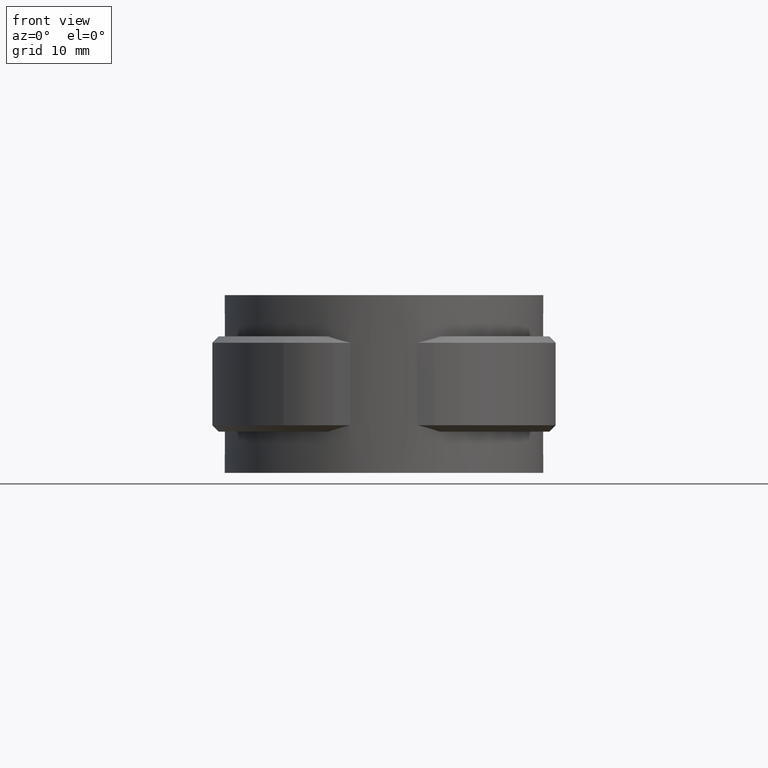
[diagram: clean part render]
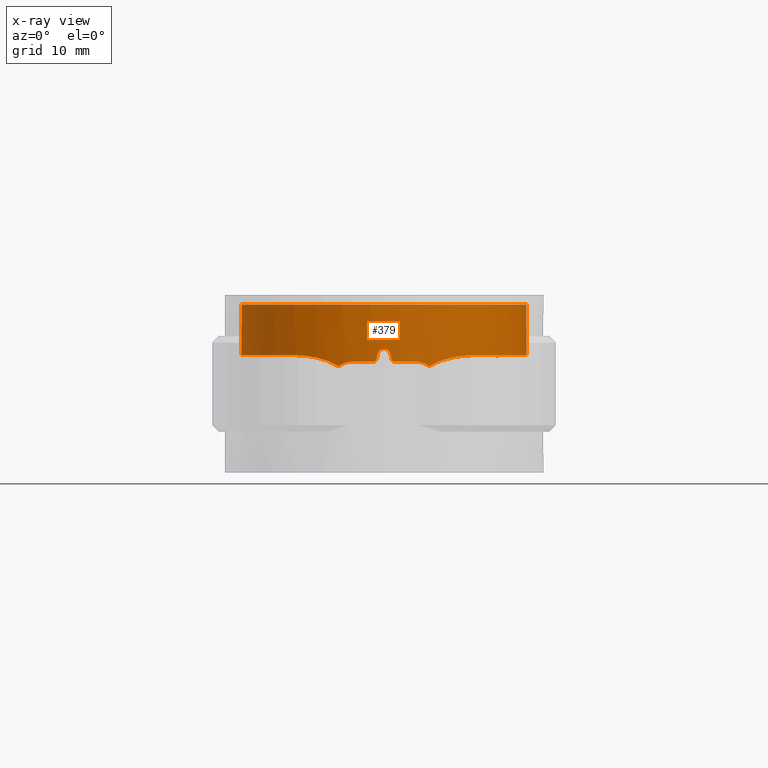
[diagram: x-ray — body ghosted, one internal face saturated and labeled with its STEP entity id]
A machine part, front view, then the same camera in x-ray: the body is ghosted and one INTERNAL B-rep face — a face not visible from any outside direction — is saturated and labeled: STEP entity #379.
In plain terms, the highlighted cylindrical surface (partial cylindrical patch) has radius 22.5 mm, axis along (0, 0, -1).
Its self-contained STEP definition (entity closure, byte-faithful):
#379 = ADVANCED_FACE( '', ( #742 ), #743, .F. );
#742 = FACE_OUTER_BOUND( '', #1626, .T. );
#743 = CYLINDRICAL_SURFACE( '', #1627, 22.5000000000000 );
#1626 = EDGE_LOOP( '', ( #2995, #2996, #2997, #2998, #2999, #3000, #3001, #3002, #3003, #3004, #3005, #3006, #3007, #3008, #3009, #3010 ) );
#1627 = AXIS2_PLACEMENT_3D( '', #3011, #3012, #3013 );
#2995 = ORIENTED_EDGE( '', *, *, #6675, .T. );
#2996 = ORIENTED_EDGE( '', *, *, #6684, .T. );
#2997 = ORIENTED_EDGE( '', *, *, #6682, .T. );
#2998 = ORIENTED_EDGE( '', *, *, #6685, .T. );
#2999 = ORIENTED_EDGE( '', *, *, #6686, .T. );
#3000 = ORIENTED_EDGE( '', *, *, #6687, .T. );
#3001 = ORIENTED_EDGE( '', *, *, #6661, .T. );
#3002 = ORIENTED_EDGE( '', *, *, #6688, .T. );
#3003 = ORIENTED_EDGE( '', *, *, #6689, .T. );
#3004 = ORIENTED_EDGE( '', *, *, #6667, .T. );
#3005 = ORIENTED_EDGE( '', *, *, #6690, .T. );
#3006 = ORIENTED_EDGE( '', *, *, #6670, .T. );
#3007 = ORIENTED_EDGE( '', *, *, #6691, .F. );
#3008 = ORIENTED_EDGE( '', *, *, #6692, .T. );
#3009 = ORIENTED_EDGE( '', *, *, #6644, .T. );
#3010 = ORIENTED_EDGE( '', *, *, #6677, .T. );
#3011 = CARTESIAN_POINT( '', ( 0.000000000000000, 0.000000000000000, 0.000000000000000 ) );
#3012 = DIRECTION( '', ( 0.000000000000000, 0.000000000000000, -1.00000000000000 ) );
#3013 = DIRECTION( '', ( 1.00000000000000, -6.12303176911189E-017, 0.000000000000000 ) );
#6644 = EDGE_CURVE( '', #7620, #7618, #7621, .T. );
#6661 = EDGE_CURVE( '', #7651, #7649, #7652, .T. );
#6667 = EDGE_CURVE( '', #7654, #7658, #7660, .T. );
#6670 = EDGE_CURVE( '', #7664, #7665, #7666, .T. );
#6675 = EDGE_CURVE( '', #7673, #7671, #7674, .T. );
#6677 = EDGE_CURVE( '', #7618, #7673, #7676, .T. );
#6682 = EDGE_CURVE( '', #7683, #7681, #7684, .T. );
#6684 = EDGE_CURVE( '', #7671, #7683, #7686, .T. );
#6685 = EDGE_CURVE( '', #7681, #7687, #7688, .T. );
#6686 = EDGE_CURVE( '', #7687, #7689, #7690, .T. );
#6687 = EDGE_CURVE( '', #7689, #7651, #7691, .T. );
#6688 = EDGE_CURVE( '', #7649, #7692, #7693, .T. );
#6689 = EDGE_CURVE( '', #7692, #7654, #7694, .T. );
#6690 = EDGE_CURVE( '', #7658, #7664, #7695, .T. );
#6691 = EDGE_CURVE( '', #7696, #7665, #7697, .T. );
#6692 = EDGE_CURVE( '', #7696, #7620, #7698, .T. );
#7618 = VERTEX_POINT( '', #9463 );
#7620 = VERTEX_POINT( '', #9480 );
#7621 = LINE( '', #9481, #9482 );
#7649 = VERTEX_POINT( '', #9644 );
#7651 = VERTEX_POINT( '', #9647 );
#7652 = ELLIPSE( '', #9648, 102.500104575276, 22.5000000000000 );
#7654 = VERTEX_POINT( '', #9651 );
#7658 = VERTEX_POINT( '', #9674 );
#7660 = B_SPLINE_CURVE_WITH_KNOTS( '', 3, ( #9693, #9694, #9695, #9696, #9697, #9698 ), .UNSPECIFIED., .F., .F., ( 4, 2, 4 ), ( 8.67361737988404E-019, 0.00118521014712559, 0.00237042029425118 ), .UNSPECIFIED. );
#7664 = VERTEX_POINT( '', #9718 );
#7665 = VERTEX_POINT( '', #9719 );
#7666 = B_SPLINE_CURVE_WITH_KNOTS( '', 3, ( #9720, #9721, #9722, #9723, #9724, #9725, #9726, #9727, #9728, #9729, #9730, #9731, #9732, #9733, #9734, #9735, #9736, #9737, #9738, #9739, #9740, #9741, #9742, #9743, #9744, #9745, #9746, #9747, #9748, #9749, #9750, #9751, #9752, #9753, #9754, #9755, #9756, #9757, #9758, #9759, #9760, #9761, #9762, #9763, #9764, #9765 ), .UNSPECIFIED., .F., .F., ( 4, 2, 2, 2, 2, 2, 2, 2, 2, 2, 2, 2, 2, 2, 2, 2, 2, 2, 2, 2, 2, 2, 4 ), ( 1.84403634944074E-017, 0.00310221631902397, 0.00620443263804791, 0.00775554079755988, 0.00930664895707185, 0.0124088652760958, 0.0139599734356078, 0.0155110815951197, 0.0186132979141437, 0.0217155142331676, 0.0232666223926796, 0.0248177305521916, 0.0279199468712155, 0.0294710550307275, 0.0310221631902395, 0.0341243795092634, 0.0372265958282873, 0.0387777039877993, 0.0403288121473113, 0.0434310284663352, 0.0449821366258472, 0.0465332447853591, 0.0496354611043830 ), .UNSPECIFIED. );
#7671 = VERTEX_POINT( '', #9791 );
#7673 = VERTEX_POINT( '', #9810 );
#7674 = B_SPLINE_CURVE_WITH_KNOTS( '', 3, ( #9811, #9812, #9813, #9814, #9815, #9816, #9817, #9818, #9819, #9820 ), .UNSPECIFIED., .F., .F., ( 4, 2, 2, 2, 4 ), ( 2.65361665640797E-017, 0.00193995859589515, 0.00387991719179028, 0.00581987578768540, 0.00775983438358053 ), .UNSPECIFIED. );
#7676 = B_SPLINE_CURVE_WITH_KNOTS( '', 3, ( #9828, #9829, #9830, #9831, #9832, #9833, #9834, #9835, #9836, #9837, #9838, #9839, #9840, #9841, #9842, #9843, #9844, #9845, #9846, #9847, #9848, #9849, #9850, #9851, #9852, #9853, #9854, #9855, #9856, #9857, #9858, #9859, #9860, #9861, #9862, #9863, #9864, #9865, #9866, #9867, #9868, #9869, #9870, #9871, #9872, #9873 ), .UNSPECIFIED., .F., .F., ( 4, 2, 2, 2, 2, 2, 2, 2, 2, 2, 2, 2, 2, 2, 2, 2, 2, 2, 2, 2, 2, 2, 4 ), ( 6.25463444138550E-018, 0.00310221661590013, 0.00620443323180026, 0.00775554153975032, 0.00930664984770038, 0.0124088664636005, 0.0139599747715506, 0.0155110830795006, 0.0186132996954007, 0.0217155163113009, 0.0232666246192509, 0.0248177329272010, 0.0279199495431011, 0.0294710578510511, 0.0310221661590012, 0.0341243827749013, 0.0372265993908014, 0.0387777076987515, 0.0403288160067016, 0.0434310326226017, 0.0449821409305517, 0.0465332492385018, 0.0496354658544019 ), .UNSPECIFIED. );
#7681 = VERTEX_POINT( '', #9903 );
#7683 = VERTEX_POINT( '', #9906 );
#7684 = CIRCLE( '', #9907, 22.5000000000000 );
#7686 = B_SPLINE_CURVE_WITH_KNOTS( '', 3, ( #9910, #9911, #9912, #9913, #9914, #9915 ), .UNSPECIFIED., .F., .F., ( 4, 2, 4 ), ( 3.87895961444886E-018, 0.00118533246572377, 0.00237066493144754 ), .UNSPECIFIED. );
#7687 = VERTEX_POINT( '', #9916 );
#7688 = B_SPLINE_CURVE_WITH_KNOTS( '', 3, ( #9917, #9918, #9919, #9920, #9921, #9922 ), .UNSPECIFIED., .F., .F., ( 4, 2, 4 ), ( 1.06063560383926E-012, 0.000336171757577039, 0.000672343514093442 ), .UNSPECIFIED. );
#7689 = VERTEX_POINT( '', #9923 );
#7690 = ELLIPSE( '', #9924, 102.500052287620, 22.5000000000000 );
#7691 = B_SPLINE_CURVE_WITH_KNOTS( '', 3, ( #9925, #9926, #9927, #9928, #9929, #9930, #9931, #9932, #9933, #9934 ), .UNSPECIFIED., .F., .F., ( 4, 2, 2, 2, 4 ), ( 1.81745402302524E-018, 0.000671640201386745, 0.00134328040277349, 0.00201492060416023, 0.00268656080554697 ), .UNSPECIFIED. );
#7692 = VERTEX_POINT( '', #9935 );
#7693 = B_SPLINE_CURVE_WITH_KNOTS( '', 3, ( #9936, #9937, #9938, #9939, #9940, #9941 ), .UNSPECIFIED., .F., .F., ( 4, 2, 4 ), ( 4.33680868994202E-019, 0.000336179392193408, 0.000672358784386816 ), .UNSPECIFIED. );
#7694 = CIRCLE( '', #9942, 22.5000000000000 );
#7695 = B_SPLINE_CURVE_WITH_KNOTS( '', 3, ( #9943, #9944, #9945, #9946, #9947, #9948, #9949, #9950, #9951, #9952 ), .UNSPECIFIED., .F., .F., ( 4, 2, 2, 2, 4 ), ( 8.49837472194074E-018, 0.00192827050484284, 0.00385654100968567, 0.00578481151452850, 0.00771308201937133 ), .UNSPECIFIED. );
#7696 = VERTEX_POINT( '', #9953 );
#7697 = LINE( '', #9954, #9955 );
#7698 = CIRCLE( '', #9956, 22.5000000000000 );
#9463 = CARTESIAN_POINT( '', ( 5.96938775510204, 21.6936951630937, -7.99706180512243 ) );
#9480 = CARTESIAN_POINT( '', ( 5.96938775510204, 21.6936951630938, 0.000000000000000 ) );
#9481 = CARTESIAN_POINT( '', ( 5.96938775510204, 21.6936951630938, 0.000000000000000 ) );
#9482 = VECTOR( '', #12890, 1000.00000000000 );
#9644 = CARTESIAN_POINT( '', ( -1.16219512100915, -22.4699644525910, -8.60975609337373 ) );
#9647 = CARTESIAN_POINT( '', ( -0.975610000000029, -22.4788386071857, -7.78048800000004 ) );
#9648 = AXIS2_PLACEMENT_3D( '', #12909, #12910, #12911 );
#9651 = CARTESIAN_POINT( '', ( -5.00000000000005, -21.9374109684803, -9.00000000000000 ) );
#9674 = CARTESIAN_POINT( '', ( -7.14327262210697, -21.3359709468835, -9.73298311040084 ) );
#9693 = CARTESIAN_POINT( '', ( -5.00000000000005, -21.9374109684803, -9.00000000000000 ) );
#9694 = CARTESIAN_POINT( '', ( -5.39085599521810, -21.8483266194248, -9.00000000000000 ) );
#9695 = CARTESIAN_POINT( '', ( -5.76850315758348, -21.7512866261342, -9.06366047849181 ) );
#9696 = CARTESIAN_POINT( '', ( -6.49895424665061, -21.5443192575499, -9.31375415626114 ) );
#9697 = CARTESIAN_POINT( '', ( -6.83698155245477, -21.4385170469738, -9.49573654119885 ) );
#9698 = CARTESIAN_POINT( '', ( -7.14327262210696, -21.3359709468835, -9.73298311040085 ) );
#9718 = CARTESIAN_POINT( '', ( -13.7117062044655, -17.8392576348464, -7.99527260252384 ) );
#9719 = CARTESIAN_POINT( '', ( -5.96938775510205, 21.6936951630938, -7.99706180512243 ) );
#9720 = CARTESIAN_POINT( '', ( -13.7117062044654, -17.8392576348464, -7.99527260252384 ) );
#9721 = CARTESIAN_POINT( '', ( -14.5433804127240, -17.2000117292770, -7.99478011165106 ) );
#9722 = CARTESIAN_POINT( '', ( -15.3207209108286, -16.5104747735151, -7.99660419402954 ) );
#9723 = CARTESIAN_POINT( '', ( -16.7711592020991, -15.0349088953749, -7.99989079026460 ) );
#9724 = CARTESIAN_POINT( '', ( -17.4442441345035, -14.2488680798248, -8.00136343441243 ) );
#9725 = CARTESIAN_POINT( '', ( -18.3743930356678, -12.9962361595927, -8.00181894641418 ) );
#9726 = CARTESIAN_POINT( '', ( -18.6718468618381, -12.5652851231884, -8.00169979607512 ) );
#9727 = CARTESIAN_POINT( '', ( -19.2362319096804, -11.6829635527954, -8.00095581804544 ) );
#9728 = CARTESIAN_POINT( '', ( -19.5014580993852, -11.2344399875099, -8.00033556248663 ) );
#9729 = CARTESIAN_POINT( '', ( -20.2475532164671, -9.86735162475108, -7.99810724867380 ) );
#9730 = CARTESIAN_POINT( '', ( -20.6790679259405, -8.92736869282569, -7.99605181430981 ) );
#9731 = CARTESIAN_POINT( '', ( -21.2283795662887, -7.47488070175047, -7.99511744497128 ) );
#9732 = CARTESIAN_POINT( '', ( -21.3950988426493, -6.98360725375854, -7.99527844761146 ) );
#9733 = CARTESIAN_POINT( '', ( -21.6952006701347, -5.98659274078914, -7.99617036034506 ) );
#9734 = CARTESIAN_POINT( '', ( -21.8289938922316, -5.47891482154125, -7.99687298759176 ) );
#9735 = CARTESIAN_POINT( '', ( -22.1754600657687, -3.94878446444682, -7.99901840758696 ) );
#9736 = CARTESIAN_POINT( '', ( -22.3332293932058, -2.92341094463889, -8.00040114645379 ) );
#9737 = CARTESIAN_POINT( '', ( -22.5072356945685, -0.862443082137203, -8.00118962085166 ) );
#9738 = CARTESIAN_POINT( '', ( -22.5234656457115, 0.173151767629277, -8.00059581030479 ) );
#9739 = CARTESIAN_POINT( '', ( -22.4391064606146, 1.73439407466916, -7.99876261799483 ) );
#9740 = CARTESIAN_POINT( '', ( -22.3924903362133, 2.25812606751290, -7.99801201243189 ) );
#9741 = CARTESIAN_POINT( '', ( -22.2636010939312, 3.29466585930830, -7.99660201374967 ) );
#9742 = CARTESIAN_POINT( '', ( -22.1814539450357, 3.80812644910590, -7.99594345184431 ) );
#9743 = CARTESIAN_POINT( '', ( -21.8830778101088, 5.33439876923421, -7.99483234437224 ) );
#9744 = CARTESIAN_POINT( '', ( -21.6151555633698, 6.33316649196143, -7.99585755088090 ) );
#9745 = CARTESIAN_POINT( '', ( -21.1099030023078, 7.80323536708025, -7.99786698184266 ) );
#9746 = CARTESIAN_POINT( '', ( -20.9241968412140, 8.28856146271294, -7.99857689898200 ) );
#9747 = CARTESIAN_POINT( '', ( -20.5174748707897, 9.24962104615925, -7.99973729810895 ) );
#9748 = CARTESIAN_POINT( '', ( -20.2956999747689, 9.72659454776965, -8.00018652379475 ) );
#9749 = CARTESIAN_POINT( '', ( -19.5868901118593, 11.1216928385966, -8.00085508583563 ) );
#9750 = CARTESIAN_POINT( '', ( -19.0543412733394, 12.0104712315914, -8.00032623285351 ) );
#9751 = CARTESIAN_POINT( '', ( -17.8723508134009, 13.7076043482623, -7.99803162103249 ) );
#9752 = CARTESIAN_POINT( '', ( -17.2229119481480, 14.5159609683284, -7.99626604401379 ) );
#9753 = CARTESIAN_POINT( '', ( -16.1583083778176, 15.6662702986152, -7.99514497354398 ) );
#9754 = CARTESIAN_POINT( '', ( -15.7880101037063, 16.0393324384631, -7.99508652942377 ) );
#9755 = CARTESIAN_POINT( '', ( -15.0286773574488, 16.7529192976023, -7.99597893742107 ) );
#9756 = CARTESIAN_POINT( '', ( -14.6382694692557, 17.0950046111277, -7.99682637004787 ) );
#9757 = CARTESIAN_POINT( '', ( -13.4354121092221, 18.0779469047638, -7.99964469068110 ) );
#9758 = CARTESIAN_POINT( '', ( -12.5914772613519, 18.6756934728286, -8.00180745434245 ) );
#9759 = CARTESIAN_POINT( '', ( -11.2621430291676, 19.4854648640754, -8.00333784758652 ) );
#9760 = CARTESIAN_POINT( '', ( -10.8084227984482, 19.7408634557295, -8.00358338863216 ) );
#9761 = CARTESIAN_POINT( '', ( -9.87923194932909, 20.2218809574957, -8.00345154356913 ) );
#9762 = CARTESIAN_POINT( '', ( -9.40481739064604, 20.4468191575700, -8.00307210983594 ) );
#9763 = CARTESIAN_POINT( '', ( -7.96592284268606, 21.0686043325002, -8.00118777354152 ) );
#9764 = CARTESIAN_POINT( '', ( -6.98075618890948, 21.4154000040958, -7.99884207046360 ) );
#9765 = CARTESIAN_POINT( '', ( -5.96938775510207, 21.6936951630938, -7.99706180512245 ) );
#9791 = CARTESIAN_POINT( '', ( 7.14327262210689, -21.3359709468835, -9.73298311040088 ) );
#9810 = CARTESIAN_POINT( '', ( 13.7117062044655, -17.8392576348464, -7.99527260252384 ) );
#9811 = CARTESIAN_POINT( '', ( 13.7117062044654, -17.8392576348464, -7.99527260252384 ) );
#9812 = CARTESIAN_POINT( '', ( 13.1973630102382, -18.2345948687083, -8.00551028257570 ) );
#9813 = CARTESIAN_POINT( '', ( 12.6687437866841, -18.6055772166798, -8.04163837412340 ) );
#9814 = CARTESIAN_POINT( '', ( 11.5840267469522, -19.2996087272353, -8.17184507122936 ) );
#9815 = CARTESIAN_POINT( '', ( 11.0274753771995, -19.6225981411575, -8.26609554097880 ) );
#9816 = CARTESIAN_POINT( '', ( 9.90555803519603, -20.2121619579762, -8.52675083410408 ) );
#9817 = CARTESIAN_POINT( '', ( 9.33532474082956, -20.4809604515542, -8.69414611442923 ) );
#9818 = CARTESIAN_POINT( '', ( 8.21813225295031, -20.9542437541393, -9.12530889124851 ) );
#9819 = CARTESIAN_POINT( '', ( 7.66789190740888, -21.1603286671365, -9.38693067389552 ) );
#9820 = CARTESIAN_POINT( '', ( 7.14327262210693, -21.3359709468835, -9.73298311040087 ) );
#9828 = CARTESIAN_POINT( '', ( 5.96938775510205, 21.6936951630938, -7.99706180512244 ) );
#9829 = CARTESIAN_POINT( '', ( 6.98075585043439, 21.4154000972329, -7.99884206986779 ) );
#9830 = CARTESIAN_POINT( '', ( 7.96077685677587, 21.0700332084098, -8.00117174957457 ) );
#9831 = CARTESIAN_POINT( '', ( 9.86067696135209, 20.2506127667962, -8.00367823539348 ) );
#9832 = CARTESIAN_POINT( '', ( 10.7805486496828, 19.7765433689410, -8.00386285188497 ) );
#9833 = CARTESIAN_POINT( '', ( 12.1145013404169, 18.9673227282076, -8.00237042611907 ) );
#9834 = CARTESIAN_POINT( '', ( 12.5525446094514, 18.6804143156261, -8.00159845720754 ) );
#9835 = CARTESIAN_POINT( '', ( 13.4080644599689, 18.0761738930846, -7.99977813730591 ) );
#9836 = CARTESIAN_POINT( '', ( 13.8228890724027, 17.7608346577226, -7.99873834117114 ) );
#9837 = CARTESIAN_POINT( '', ( 15.0295599431552, 16.7761845514034, -7.99590660183704 ) );
#9838 = CARTESIAN_POINT( '', ( 15.7837780892772, 16.0684198019212, -7.99477903313716 ) );
#9839 = CARTESIAN_POINT( '', ( 16.8404188555885, 14.9304465503853, -7.99584977716437 ) );
#9840 = CARTESIAN_POINT( '', ( 17.1801405347536, 14.5383560561204, -7.99648704406691 ) );
#9841 = CARTESIAN_POINT( '', ( 17.8341673548127, 13.7282009152310, -7.99784461522723 ) );
#9842 = CARTESIAN_POINT( '', ( 18.1495836651245, 13.3084970490499, -7.99856651128181 ) );
#9843 = CARTESIAN_POINT( '', ( 19.0476491003084, 12.0221041186313, -8.00031961751487 ) );
#9844 = CARTESIAN_POINT( '', ( 19.5805544712932, 11.1319967358706, -8.00084857551028 ) );
#9845 = CARTESIAN_POINT( '', ( 20.5191448390250, 9.28892673056612, -7.99998800040118 ) );
#9846 = CARTESIAN_POINT( '', ( 20.9248235542925, 8.33596100379306, -7.99860038736867 ) );
#9847 = CARTESIAN_POINT( '', ( 21.4356297800931, 6.85823574904988, -7.99657280253232 ) );
#9848 = CARTESIAN_POINT( '', ( 21.5900200812487, 6.35561073448841, -7.99592560935240 ) );
#9849 = CARTESIAN_POINT( '', ( 21.8616563019193, 5.34703082596470, -7.99520168089426 ) );
#9850 = CARTESIAN_POINT( '', ( 21.9792656429569, 4.84051713788752, -7.99519766970571 ) );
#9851 = CARTESIAN_POINT( '', ( 22.2786737448792, 3.31445223719137, -7.99629152030744 ) );
#9852 = CARTESIAN_POINT( '', ( 22.4073009638362, 2.28840726987893, -7.99809908567390 ) );
#9853 = CARTESIAN_POINT( '', ( 22.4939162965826, 0.736352987044650, -7.99994064501334 ) );
#9854 = CARTESIAN_POINT( '', ( 22.5050049826860, 0.216829505148812, -8.00042762660579 ) );
#9855 = CARTESIAN_POINT( '', ( 22.4908627658155, -0.826653708805104, -8.00095660626208 ) );
#9856 = CARTESIAN_POINT( '', ( 22.4653966278085, -1.35204722464080, -8.00099612026926 ) );
#9857 = CARTESIAN_POINT( '', ( 22.3352131646499, -2.91145363337366, -8.00041773283654 ) );
#9858 = CARTESIAN_POINT( '', ( 22.1772745186765, -3.93545839902459, -7.99903789634236 ) );
#9859 = CARTESIAN_POINT( '', ( 21.7228024784732, -5.95308242580536, -7.99620736581979 ) );
#9860 = CARTESIAN_POINT( '', ( 21.4262723457426, -6.94670244266307, -7.99481595815937 ) );
#9861 = CARTESIAN_POINT( '', ( 20.8742398455908, -8.41362384671187, -7.99570317523644 ) );
#9862 = CARTESIAN_POINT( '', ( 20.6720257053310, -8.89880896754328, -7.99639753743607 ) );
#9863 = CARTESIAN_POINT( '', ( 20.2379711487000, -9.84611454265476, -7.99795913403040 ) );
#9864 = CARTESIAN_POINT( '', ( 20.0054474394648, -10.3101983100751, -7.99882696641999 ) );
#9865 = CARTESIAN_POINT( '', ( 19.2622400637873, -11.6742697206325, -8.00105659541909 ) );
#9866 = CARTESIAN_POINT( '', ( 18.7061341701137, -12.5462096884944, -8.00195375509524 ) );
#9867 = CARTESIAN_POINT( '', ( 17.7804674699081, -13.7976151865469, -8.00154110344581 ) );
#9868 = CARTESIAN_POINT( '', ( 17.4566074550424, -14.2053001162130, -8.00113304400664 ) );
#9869 = CARTESIAN_POINT( '', ( 16.7775101201251, -15.0012949241131, -7.99991310746938 ) );
#9870 = CARTESIAN_POINT( '', ( 16.4229958730320, -15.3885740334930, -7.99910221180664 ) );
#9871 = CARTESIAN_POINT( '', ( 15.3249521516951, -16.5072062587204, -7.99661312430511 ) );
#9872 = CARTESIAN_POINT( '', ( 14.5433832852783, -17.2000095213585, -7.99478010994992 ) );
#9873 = CARTESIAN_POINT( '', ( 13.7117062044652, -17.8392576348462, -7.99527260252373 ) );
#9903 = CARTESIAN_POINT( '', ( 1.64999999892696, -22.4394184417409, -9.00000000000000 ) );
#9906 = CARTESIAN_POINT( '', ( 5.00000000000000, -21.9374109684803, -9.00000000000000 ) );
#9907 = AXIS2_PLACEMENT_3D( '', #12918, #12919, #12920 );
#9910 = CARTESIAN_POINT( '', ( 7.14327262210689, -21.3359709468835, -9.73298311040088 ) );
#9911 = CARTESIAN_POINT( '', ( 6.83697897053708, -21.4385179113986, -9.49573454130022 ) );
#9912 = CARTESIAN_POINT( '', ( 6.50163931274158, -21.5435049255259, -9.31503561363188 ) );
#9913 = CARTESIAN_POINT( '', ( 5.77167343377980, -21.7504414668518, -9.06438668072165 ) );
#9914 = CARTESIAN_POINT( '', ( 5.39083361902738, -21.8483317194320, -9.00000000000001 ) );
#9915 = CARTESIAN_POINT( '', ( 5.00000000000000, -21.9374109684803, -9.00000000000000 ) );
#9916 = CARTESIAN_POINT( '', ( 1.16219499999999, -22.4699644588498, -8.60975599999999 ) );
#9917 = CARTESIAN_POINT( '', ( 1.64999999999995, -22.4394184416620, -8.99999999999995 ) );
#9918 = CARTESIAN_POINT( '', ( 1.53663857330624, -22.4477540567106, -9.00000000048649 ) );
#9919 = CARTESIAN_POINT( '', ( 1.42653750734412, -22.4549077652884, -8.96146594457067 ) );
#9920 = CARTESIAN_POINT( '', ( 1.24917792883723, -22.4654723188625, -8.81973114694352 ) );
#9921 = CARTESIAN_POINT( '', ( 1.18714631622429, -22.4686739229875, -8.72065074099712 ) );
#9922 = CARTESIAN_POINT( '', ( 1.16219499999998, -22.4699644588498, -8.60975599999999 ) );
#9923 = CARTESIAN_POINT( '', ( 0.975609757981817, -22.4788386176895, -7.78048781325256 ) );
#9924 = AXIS2_PLACEMENT_3D( '', #12922, #12923, #12924 );
#9925 = CARTESIAN_POINT( '', ( 0.975609757981820, -22.4788386176895, -7.78048781325256 ) );
#9926 = CARTESIAN_POINT( '', ( 0.925759449235981, -22.4810021835427, -7.55893097562738 ) );
#9927 = CARTESIAN_POINT( '', ( 0.802000628317956, -22.4864014670564, -7.36098155732460 ) );
#9928 = CARTESIAN_POINT( '', ( 0.447420897622099, -22.4962501427644, -7.07730605249319 ) );
#9929 = CARTESIAN_POINT( '', ( 0.227104418399295, -22.5000000108343, -6.99999977550522 ) );
#9930 = CARTESIAN_POINT( '', ( -0.227106565175071, -22.4999999891656, -7.00000021762863 ) );
#9931 = CARTESIAN_POINT( '', ( -0.447458947039427, -22.4962492274986, -7.07732972456105 ) );
#9932 = CARTESIAN_POINT( '', ( -0.801998479497325, -22.4864013851462, -7.36098628756926 ) );
#9933 = CARTESIAN_POINT( '', ( -0.925759729873601, -22.4810021719004, -7.55893113598760 ) );
#9934 = CARTESIAN_POINT( '', ( -0.975610000000030, -22.4788386071856, -7.78048800000004 ) );
#9935 = CARTESIAN_POINT( '', ( -1.65000000000003, -22.4394184416620, -8.99999999999997 ) );
#9936 = CARTESIAN_POINT( '', ( -1.16219512100915, -22.4699644525910, -8.60975609337373 ) );
#9937 = CARTESIAN_POINT( '', ( -1.18714642767576, -22.4686739170883, -8.72065079411459 ) );
#9938 = CARTESIAN_POINT( '', ( -1.24917004909896, -22.4654727743059, -8.81972347787829 ) );
#9939 = CARTESIAN_POINT( '', ( -1.42653836187879, -22.4549077283059, -8.96146792752488 ) );
#9940 = CARTESIAN_POINT( '', ( -1.53663860698352, -22.4477540542343, -8.99999999999994 ) );
#9941 = CARTESIAN_POINT( '', ( -1.65000000000003, -22.4394184416620, -8.99999999999994 ) );
#9942 = AXIS2_PLACEMENT_3D( '', #12925, #12926, #12927 );
#9943 = CARTESIAN_POINT( '', ( -7.14327262210697, -21.3359709468835, -9.73298311040084 ) );
#9944 = CARTESIAN_POINT( '', ( -7.66797873058457, -21.1602995987798, -9.38687340308536 ) );
#9945 = CARTESIAN_POINT( '', ( -8.21819227263086, -20.9542167241186, -9.12528893762039 ) );
#9946 = CARTESIAN_POINT( '', ( -9.33516386029827, -20.4810302097487, -8.69420499399784 ) );
#9947 = CARTESIAN_POINT( '', ( -9.90542499494319, -20.2122216015670, -8.52679379112500 ) );
#9948 = CARTESIAN_POINT( '', ( -11.0270369977343, -19.6228387714902, -8.26618534815798 ) );
#9949 = CARTESIAN_POINT( '', ( -11.5830410062098, -19.3002155907109, -8.17198367519334 ) );
#9950 = CARTESIAN_POINT( '', ( -12.6685487812320, -18.6057258008658, -8.04164152599923 ) );
#9951 = CARTESIAN_POINT( '', ( -13.1973523882723, -18.2346030330209, -8.00551049399929 ) );
#9952 = CARTESIAN_POINT( '', ( -13.7117062044654, -17.8392576348464, -7.99527260252384 ) );
#9953 = CARTESIAN_POINT( '', ( -5.96938775510204, 21.6936951630937, 0.000000000000000 ) );
#9954 = CARTESIAN_POINT( '', ( -5.96938775510204, 21.6936951630937, 0.000000000000000 ) );
#9955 = VECTOR( '', #12928, 1000.00000000000 );
#9956 = AXIS2_PLACEMENT_3D( '', #12929, #12930, #12931 );
#12890 = DIRECTION( '', ( 0.000000000000000, 0.000000000000000, -1.00000000000000 ) );
#12909 = CARTESIAN_POINT( '', ( 0.000000000000000, 0.000000000000000, -3.44443890776445 ) );
#12910 = DIRECTION( '', ( 0.975609806487711, 0.000000000000000, -0.219511971165610 ) );
#12911 = DIRECTION( '', ( 0.219511971165610, 0.000000000000000, 0.975609806487711 ) );
#12918 = CARTESIAN_POINT( '', ( 0.000000000000000, 0.000000000000000, -9.00000000000000 ) );
#12919 = DIRECTION( '', ( 6.12303176911189E-017, 0.000000000000000, -1.00000000000000 ) );
#12920 = DIRECTION( '', ( -1.00000000000000, 0.000000000000000, -6.12303176911189E-017 ) );
#12922 = CARTESIAN_POINT( '', ( 0.000000000000000, 0.000000000000000, -3.44444212055027 ) );
#12923 = DIRECTION( '', ( -0.975609781292647, 0.000000000000000, -0.219512083143762 ) );
#12924 = DIRECTION( '', ( -0.219512083143762, 0.000000000000000, 0.975609781292647 ) );
#12925 = CARTESIAN_POINT( '', ( 0.000000000000000, 0.000000000000000, -9.00000000000000 ) );
#12926 = DIRECTION( '', ( 6.12303176911189E-017, 0.000000000000000, -1.00000000000000 ) );
#12927 = DIRECTION( '', ( -1.00000000000000, 0.000000000000000, -6.12303176911189E-017 ) );
#12928 = DIRECTION( '', ( 0.000000000000000, 0.000000000000000, -1.00000000000000 ) );
#12929 = CARTESIAN_POINT( '', ( 0.000000000000000, 0.000000000000000, 0.000000000000000 ) );
#12930 = DIRECTION( '', ( 0.000000000000000, 0.000000000000000, 1.00000000000000 ) );
#12931 = DIRECTION( '', ( 1.00000000000000, 0.000000000000000, 0.000000000000000 ) );